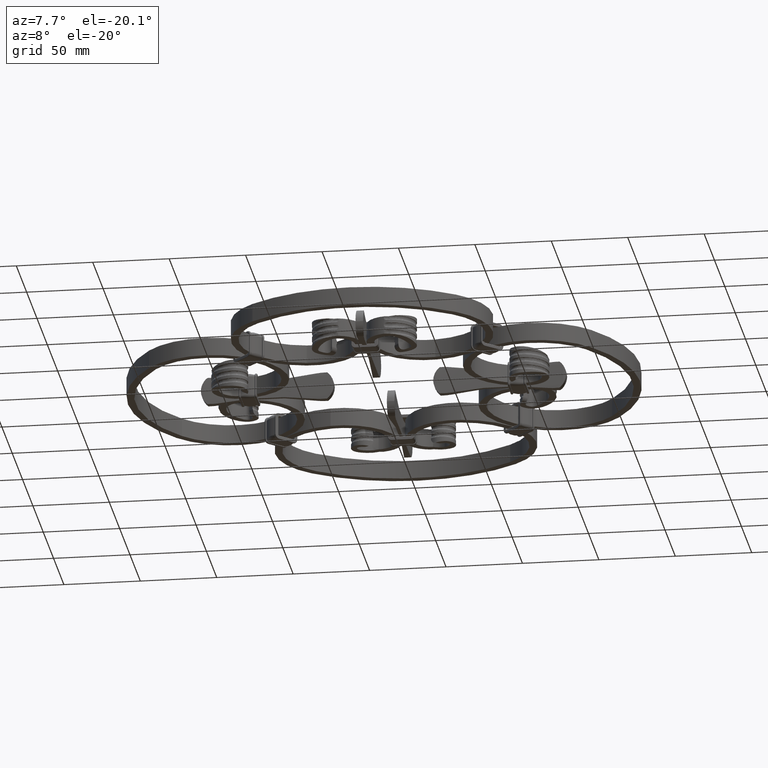
[diagram: clean part render]
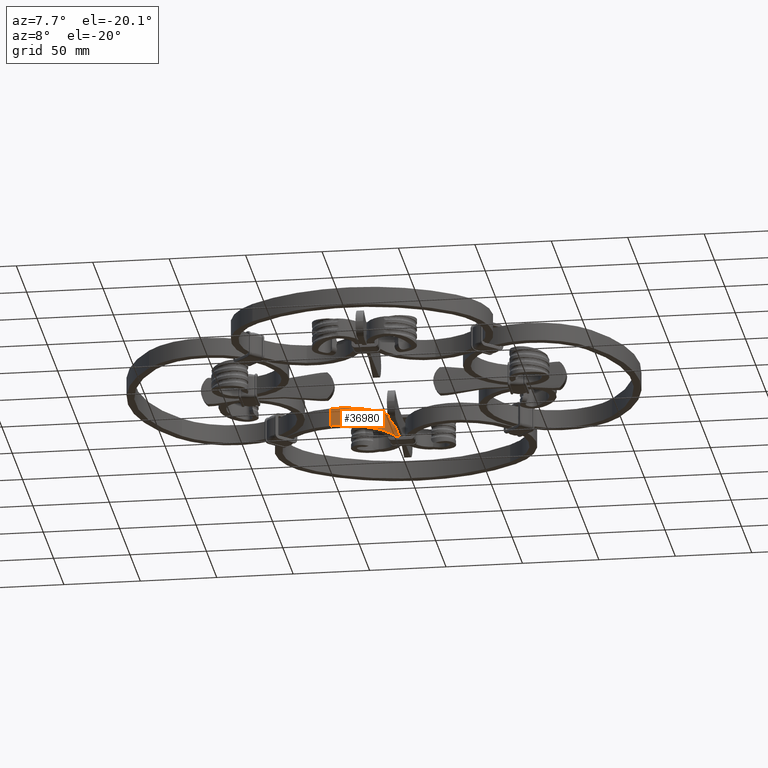
[diagram: same view with one face highlighted and labeled with its STEP entity id]
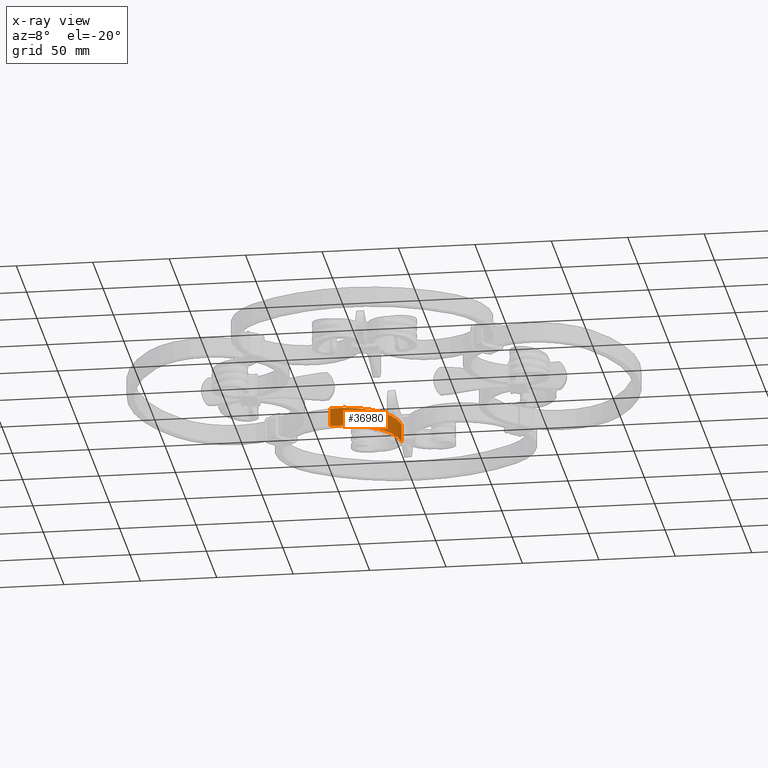
[diagram: x-ray of the same camera — body ghosted, the highlighted face saturated]
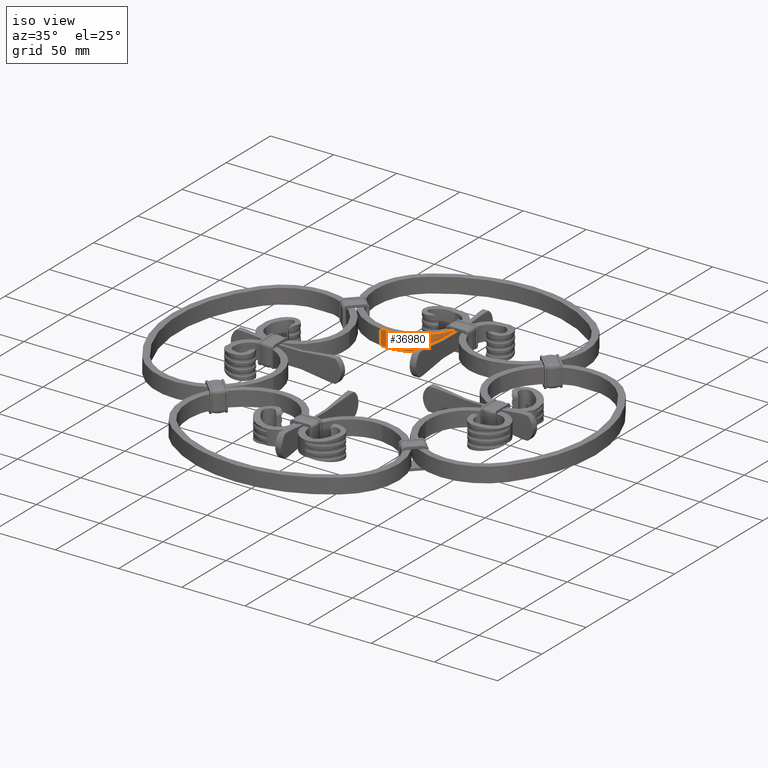
[diagram: same view with one face highlighted and labeled with its STEP entity id]
A machine part, auxiliary view. The second image highlights one B-rep face of the part: STEP entity #36980.
The next image is the same camera in x-ray: the body ghosted, the highlighted face saturated — about 0% of this face is hidden behind the body in this view.
A second angle (iso view) of the same face is appended — the face is thin or edge-on in the first view.
In plain terms, the highlighted cylindrical surface (partial cylindrical patch) has radius 36.7956 mm, axis along (0, 0, -1).
Its self-contained STEP definition (entity closure, byte-faithful):
#188 = EDGE_CURVE ( 'NONE', #45644, #34688, #30525, .T. ) ;
#1178 = VERTEX_POINT ( 'NONE', #46363 ) ;
#2898 = CYLINDRICAL_SURFACE ( 'NONE', #39943, 36.79556694813030049 ) ;
#2968 = VECTOR ( 'NONE', #26756, 1000.000000000000000 ) ;
#5178 = ORIENTED_EDGE ( 'NONE', *, *, #8707, .T. ) ;
#8707 = EDGE_CURVE ( 'NONE', #25088, #45644, #22606, .T. ) ;
#12820 = EDGE_LOOP ( 'NONE', ( #30008, #51580, #5178, #27441 ) ) ;
#15759 = EDGE_CURVE ( 'NONE', #1178, #34688, #54062, .T. ) ;
#22495 = CARTESIAN_POINT ( 'NONE',  ( -1.300000000000037126, 93.99999999999997158, -5.999999999999998224 ) ) ;
#22606 = CIRCLE ( 'NONE', #39755, 36.79556694813030049 ) ;
#25088 = VERTEX_POINT ( 'NONE', #27161 ) ;
#25551 = DIRECTION ( 'NONE',  ( -1.885796164980633707E-16, 1.000000000000000000, 0.000000000000000000 ) ) ;
#26756 = DIRECTION ( 'NONE',  ( 0.000000000000000000, 0.000000000000000000, 1.000000000000000000 ) ) ;
#27161 = CARTESIAN_POINT ( 'NONE',  ( -42.75000000000003553, 57.49999999999992184, -5.999999999999998224 ) ) ;
#27441 = ORIENTED_EDGE ( 'NONE', *, *, #188, .T. ) ;
#30008 = ORIENTED_EDGE ( 'NONE', *, *, #15759, .F. ) ;
#30525 = LINE ( 'NONE', #31715, #2968 ) ;
#31198 = DIRECTION ( 'NONE',  ( 0.000000000000000000, 0.000000000000000000, -1.000000000000000000 ) ) ;
#31715 = CARTESIAN_POINT ( 'NONE',  ( -1.300000000000044231, 93.99999999999997158, -5.999999999999998224 ) ) ;
#33369 = LINE ( 'NONE', #38435, #34980 ) ;
#33472 = DIRECTION ( 'NONE',  ( -0.1264943969590395512, -0.9919673218095287348, 0.000000000000000000 ) ) ;
#34008 = DIRECTION ( 'NONE',  ( -0.1264943969590395512, -0.9919673218095287348, 0.000000000000000000 ) ) ;
#34688 = VERTEX_POINT ( 'NONE', #51237 ) ;
#34980 = VECTOR ( 'NONE', #39813, 1000.000000000000000 ) ;
#36980 = ADVANCED_FACE ( 'NONE', ( #46639 ), #2898, .T. ) ;
#38435 = CARTESIAN_POINT ( 'NONE',  ( -42.75000000000003553, 57.49999999999992184, -5.999999999999998224 ) ) ;
#39755 = AXIS2_PLACEMENT_3D ( 'NONE', #59314, #64518, #33472 ) ;
#39813 = DIRECTION ( 'NONE',  ( 0.000000000000000000, 0.000000000000000000, 1.000000000000000000 ) ) ;
#39943 = AXIS2_PLACEMENT_3D ( 'NONE', #52002, #31198, #25551 ) ;
#44830 = AXIS2_PLACEMENT_3D ( 'NONE', #60305, #55084, #34008 ) ;
#45644 = VERTEX_POINT ( 'NONE', #22495 ) ;
#46363 = CARTESIAN_POINT ( 'NONE',  ( -42.75000000000003553, 57.49999999999992184, 5.999999999999998224 ) ) ;
#46639 = FACE_OUTER_BOUND ( 'NONE', #12820, .T. ) ;
#51237 = CARTESIAN_POINT ( 'NONE',  ( -1.300000000000037126, 93.99999999999997158, 5.999999999999998224 ) ) ;
#51580 = ORIENTED_EDGE ( 'NONE', *, *, #62059, .F. ) ;
#52002 = CARTESIAN_POINT ( 'NONE',  ( -38.09556694813032607, 93.99999999999994316, 0.000000000000000000 ) ) ;
#54062 = CIRCLE ( 'NONE', #44830, 36.79556694813030049 ) ;
#55084 = DIRECTION ( 'NONE',  ( -0.000000000000000000, -0.000000000000000000, 1.000000000000000000 ) ) ;
#59314 = CARTESIAN_POINT ( 'NONE',  ( -38.09556694813032607, 93.99999999999994316, -5.999999999999998224 ) ) ;
#60305 = CARTESIAN_POINT ( 'NONE',  ( -38.09556694813032607, 93.99999999999994316, 5.999999999999998224 ) ) ;
#62059 = EDGE_CURVE ( 'NONE', #25088, #1178, #33369, .T. ) ;
#64518 = DIRECTION ( 'NONE',  ( -0.000000000000000000, -0.000000000000000000, 1.000000000000000000 ) ) ;